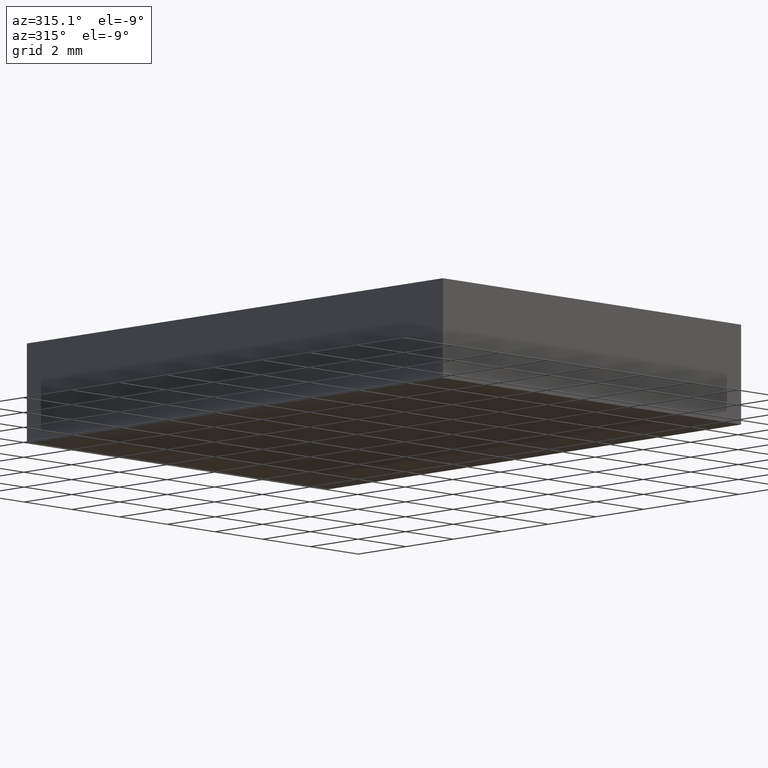
[diagram: clean part render]
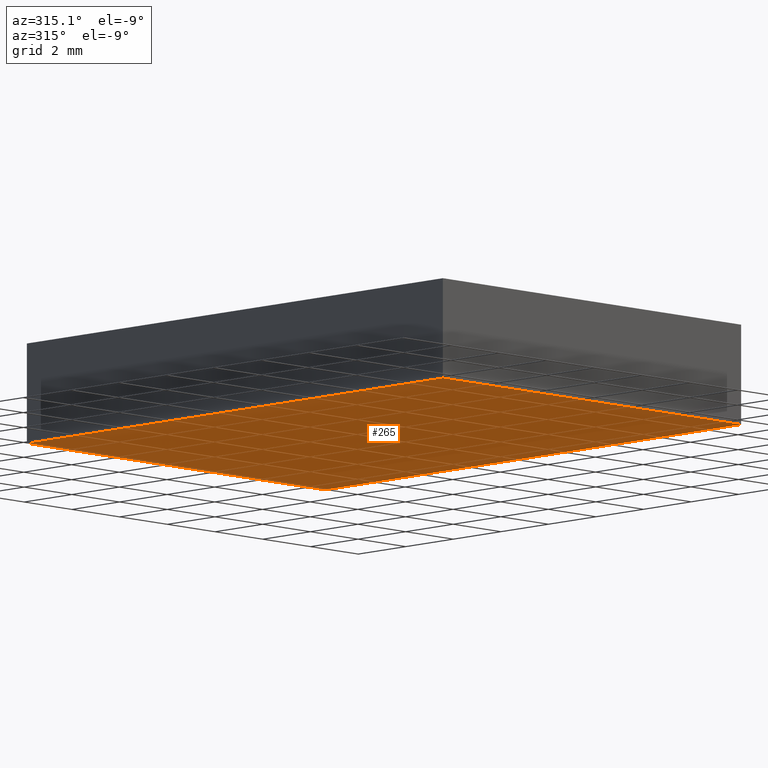
[diagram: same view with one face highlighted and labeled with its STEP entity id]
A machine part, auxiliary view. The second image highlights one B-rep face of the part: STEP entity #265.
In plain terms, the highlighted planar face has unit normal (-0, 0, 1).
Its self-contained STEP definition (entity closure, byte-faithful):
#1 = PLANE ( 'NONE',  #244 ) ;
#10 = VERTEX_POINT ( 'NONE', #37 ) ;
#19 = VECTOR ( 'NONE', #50, 1000.000000000000000 ) ;
#25 = CARTESIAN_POINT ( 'NONE',  ( 6.148373983739839200, 7.520325203252024700, 0.0000000000000000000 ) ) ;
#37 = CARTESIAN_POINT ( 'NONE',  ( -6.351626016260160800, -9.979674796747977100, 0.0000000000000000000 ) ) ;
#47 = DIRECTION ( 'NONE',  ( 9.912705577010325500E-017, -1.000000000000000000, 0.0000000000000000000 ) ) ;
#49 = CARTESIAN_POINT ( 'NONE',  ( -6.351626016260162500, 7.520325203252024700, 0.0000000000000000000 ) ) ;
#50 = DIRECTION ( 'NONE',  ( 1.000000000000000000, 0.0000000000000000000, 0.0000000000000000000 ) ) ;
#53 = DIRECTION ( 'NONE',  ( -1.000000000000000000, -0.0000000000000000000, -0.0000000000000000000 ) ) ;
#55 = CARTESIAN_POINT ( 'NONE',  ( -6.351626016260162500, 7.520325203252024700, 0.0000000000000000000 ) ) ;
#57 = ORIENTED_EDGE ( 'NONE', *, *, #257, .F. ) ;
#69 = DIRECTION ( 'NONE',  ( -4.956352788505162800E-017, 1.000000000000000000, -0.0000000000000000000 ) ) ;
#86 = EDGE_CURVE ( 'NONE', #160, #10, #281, .T. ) ;
#91 = ORIENTED_EDGE ( 'NONE', *, *, #232, .F. ) ;
#96 = EDGE_LOOP ( 'NONE', ( #290, #91, #229, #57 ) ) ;
#101 = CARTESIAN_POINT ( 'NONE',  ( -6.351626016260160800, -9.979674796747977100, 0.0000000000000000000 ) ) ;
#121 = EDGE_CURVE ( 'NONE', #201, #285, #183, .T. ) ;
#127 = CARTESIAN_POINT ( 'NONE',  ( 0.0000000000000000000, 0.0000000000000000000, 0.0000000000000000000 ) ) ;
#145 = CARTESIAN_POINT ( 'NONE',  ( 6.148373983739839200, 7.520325203252024700, 0.0000000000000000000 ) ) ;
#147 = CARTESIAN_POINT ( 'NONE',  ( -6.351626016260162500, 7.520325203252024700, 0.0000000000000000000 ) ) ;
#160 = VERTEX_POINT ( 'NONE', #147 ) ;
#169 = CARTESIAN_POINT ( 'NONE',  ( 6.148373983739840100, -9.979674796747977100, 0.0000000000000000000 ) ) ;
#173 = DIRECTION ( 'NONE',  ( -0.0000000000000000000, 0.0000000000000000000, 1.000000000000000000 ) ) ;
#183 = LINE ( 'NONE', #145, #236 ) ;
#200 = LINE ( 'NONE', #101, #19 ) ;
#201 = VERTEX_POINT ( 'NONE', #169 ) ;
#204 = VECTOR ( 'NONE', #47, 1000.000000000000000 ) ;
#229 = ORIENTED_EDGE ( 'NONE', *, *, #121, .F. ) ;
#232 = EDGE_CURVE ( 'NONE', #285, #160, #258, .T. ) ;
#236 = VECTOR ( 'NONE', #69, 1000.000000000000000 ) ;
#244 = AXIS2_PLACEMENT_3D ( 'NONE', #127, #173, #287 ) ;
#257 = EDGE_CURVE ( 'NONE', #10, #201, #200, .T. ) ;
#258 = LINE ( 'NONE', #55, #274 ) ;
#265 = ADVANCED_FACE ( 'NONE', ( #296 ), #1, .F. ) ;
#274 = VECTOR ( 'NONE', #53, 1000.000000000000000 ) ;
#281 = LINE ( 'NONE', #49, #204 ) ;
#285 = VERTEX_POINT ( 'NONE', #25 ) ;
#287 = DIRECTION ( 'NONE',  ( 1.000000000000000000, 0.0000000000000000000, 0.0000000000000000000 ) ) ;
#290 = ORIENTED_EDGE ( 'NONE', *, *, #86, .F. ) ;
#296 = FACE_OUTER_BOUND ( 'NONE', #96, .T. ) ;